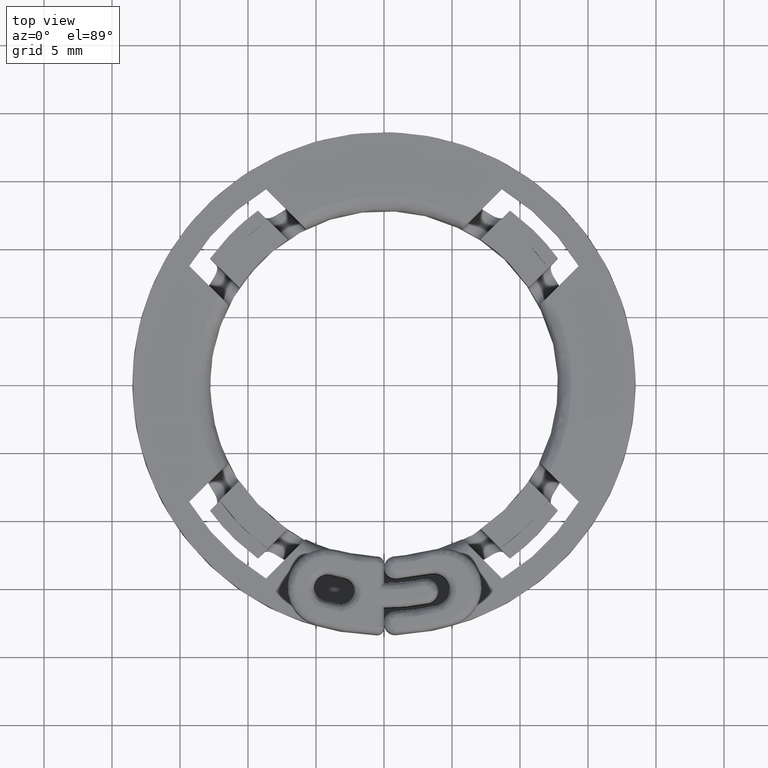
[diagram: clean part render]
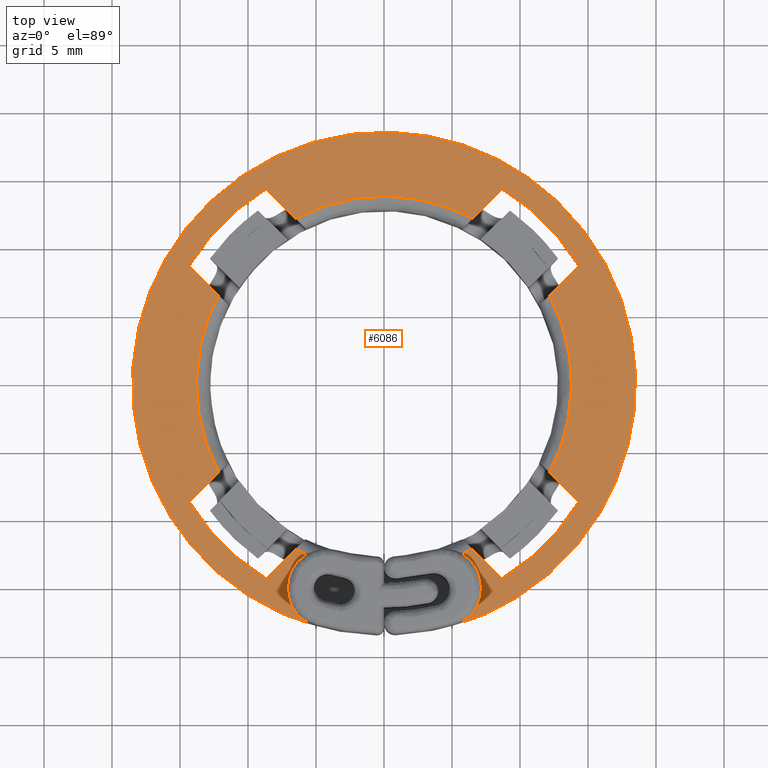
[diagram: same view with one face highlighted and labeled with its STEP entity id]
A machine part, top view. The second image highlights one B-rep face of the part: STEP entity #6086.
In plain terms, the highlighted face is a freeform B-spline surface patch.
Its self-contained STEP definition (entity closure, byte-faithful):
#253=CARTESIAN_POINT('',(-12.167591969634580,6.510737720142159,7.500000000000000));
#254=VERTEX_POINT('',#253);
#286=CARTESIAN_POINT('',(-12.167591969634620,-6.510737720142389,7.500000000000000));
#287=VERTEX_POINT('',#286);
#288=CARTESIAN_POINT('',(-12.167591969634630,-6.510737720142396,7.500000000000000));
#289=CARTESIAN_POINT('',(-15.651412413833512,-1.051451E-013,7.499999999999999));
#290=CARTESIAN_POINT('',(-12.167591969634580,6.510737720142164,7.500000000000000));
#298=(BOUNDED_CURVE()B_SPLINE_CURVE(2,(#288,#289,#290),.UNSPECIFIED.,.F.,.U.)CURVE()GEOMETRIC_REPRESENTATION_ITEM()QUASI_UNIFORM_CURVE()RATIONAL_B_SPLINE_CURVE((1.0,0.881709563017000,1.0))REPRESENTATION_ITEM(''));
#299=EDGE_CURVE('',#287,#254,#298,.T.);
#364=CARTESIAN_POINT('',(6.510737720142120,12.167591969634540,7.500000000000000));
#365=VERTEX_POINT('',#364);
#397=CARTESIAN_POINT('',(-6.510737720142219,12.167591969634479,7.500000000000000));
#398=VERTEX_POINT('',#397);
#399=CARTESIAN_POINT('',(-6.510737720142219,12.167591969634479,7.500000000000000));
#400=CARTESIAN_POINT('',(-6.331741E-014,15.651412413833278,7.500000000000000));
#401=CARTESIAN_POINT('',(6.510737720142117,12.167591969634540,7.500000000000000));
#409=(BOUNDED_CURVE()B_SPLINE_CURVE(2,(#399,#400,#401),.UNSPECIFIED.,.F.,.U.)CURVE()GEOMETRIC_REPRESENTATION_ITEM()QUASI_UNIFORM_CURVE()RATIONAL_B_SPLINE_CURVE((1.0,0.881709563017005,1.0))REPRESENTATION_ITEM(''));
#410=EDGE_CURVE('',#398,#365,#409,.T.);
#475=CARTESIAN_POINT('',(12.167591969634699,-6.510737720142250,7.500000000000000));
#476=VERTEX_POINT('',#475);
#508=CARTESIAN_POINT('',(12.167591969634520,6.510737720142269,7.500000000000000));
#509=VERTEX_POINT('',#508);
#510=CARTESIAN_POINT('',(12.167591969634520,6.510737720142271,7.500000000000000));
#511=CARTESIAN_POINT('',(15.651412413833498,5.531686E-014,7.500000000000000));
#512=CARTESIAN_POINT('',(12.167591969634710,-6.510737720142251,7.500000000000000));
#520=(BOUNDED_CURVE()B_SPLINE_CURVE(2,(#510,#511,#512),.UNSPECIFIED.,.F.,.U.)CURVE()GEOMETRIC_REPRESENTATION_ITEM()QUASI_UNIFORM_CURVE()RATIONAL_B_SPLINE_CURVE((1.0,0.881709563017001,1.0))REPRESENTATION_ITEM(''));
#521=EDGE_CURVE('',#509,#476,#520,.T.);
#586=CARTESIAN_POINT('',(-6.510737720142300,-12.167591969634740,7.500000000000000));
#587=VERTEX_POINT('',#586);
#619=CARTESIAN_POINT('',(-5.650019673288431,-12.590364478102201,7.500000000000000));
#620=VERTEX_POINT('',#619);
#621=CARTESIAN_POINT('',(-5.650019673288433,-12.590364478102201,7.500000000000000));
#622=CARTESIAN_POINT('',(-6.087727605509991,-12.393939789007019,7.500000000000000));
#623=CARTESIAN_POINT('',(-6.510737720142299,-12.167591969634749,7.500000000000000));
#631=(BOUNDED_CURVE()B_SPLINE_CURVE(2,(#621,#622,#623),.UNSPECIFIED.,.F.,.U.)CURVE()GEOMETRIC_REPRESENTATION_ITEM()QUASI_UNIFORM_CURVE()RATIONAL_B_SPLINE_CURVE((1.0,0.999396233828763,1.0))REPRESENTATION_ITEM(''));
#632=EDGE_CURVE('',#620,#587,#631,.T.);
#694=CARTESIAN_POINT('',(5.709376043485900,-12.563559415789500,7.500000000000000));
#695=VERTEX_POINT('',#694);
#723=CARTESIAN_POINT('',(6.510737720142440,-12.167591969634680,7.500000000000000));
#724=VERTEX_POINT('',#723);
#725=CARTESIAN_POINT('',(6.510737720142434,-12.167591969634680,7.500000000000000));
#726=CARTESIAN_POINT('',(6.116472133809665,-12.378558924402471,7.500000000000000));
#727=CARTESIAN_POINT('',(5.709376043485905,-12.563559415789509,7.500000000000000));
#735=(BOUNDED_CURVE()B_SPLINE_CURVE(2,(#725,#726,#727),.UNSPECIFIED.,.F.,.U.)CURVE()GEOMETRIC_REPRESENTATION_ITEM()QUASI_UNIFORM_CURVE()RATIONAL_B_SPLINE_CURVE((1.0,0.999475438218753,1.0))REPRESENTATION_ITEM(''));
#736=EDGE_CURVE('',#724,#695,#735,.T.);
#2581=CARTESIAN_POINT('',(14.329785740144461,8.672931490652299,7.500000000000000));
#2582=VERTEX_POINT('',#2581);
#2583=CARTESIAN_POINT('',(14.329785740144461,8.672931490652299,7.500000000000000));
#2584=CARTESIAN_POINT('',(12.167591969634520,6.510737720142269,7.500000000000000));
#2585=QUASI_UNIFORM_CURVE('',1,(#2583,#2584),.UNSPECIFIED.,.F.,.U.);
#2586=EDGE_CURVE('',#2582,#509,#2585,.T.);
#2616=CARTESIAN_POINT('',(8.672931490652161,14.329785740144599,7.500000000000000));
#2617=VERTEX_POINT('',#2616);
#2618=CARTESIAN_POINT('',(6.510737720142120,12.167591969634540,7.500000000000000));
#2619=CARTESIAN_POINT('',(8.672931490652161,14.329785740144599,7.500000000000000));
#2620=QUASI_UNIFORM_CURVE('',1,(#2618,#2619),.UNSPECIFIED.,.F.,.U.);
#2621=EDGE_CURVE('',#365,#2617,#2620,.T.);
#2680=CARTESIAN_POINT('',(14.329785740144461,8.672931490652299,7.500000000000000));
#2681=CARTESIAN_POINT('',(12.196928614345097,12.196928614345230,7.500000000000000));
#2682=CARTESIAN_POINT('',(8.672931490652161,14.329785740144599,7.500000000000000));
#2690=(BOUNDED_CURVE()B_SPLINE_CURVE(2,(#2680,#2681,#2682),.UNSPECIFIED.,.F.,.U.)CURVE()GEOMETRIC_REPRESENTATION_ITEM()QUASI_UNIFORM_CURVE()RATIONAL_B_SPLINE_CURVE((1.0,0.971067303857501,1.0))REPRESENTATION_ITEM(''));
#2691=EDGE_CURVE('',#2582,#2617,#2690,.T.);
#2760=CARTESIAN_POINT('',(8.672931490652310,-14.329785740144461,7.500000000000000));
#2761=VERTEX_POINT('',#2760);
#2762=CARTESIAN_POINT('',(8.672931490652310,-14.329785740144461,7.500000000000000));
#2763=CARTESIAN_POINT('',(6.510737720142440,-12.167591969634680,7.500000000000000));
#2764=QUASI_UNIFORM_CURVE('',1,(#2762,#2763),.UNSPECIFIED.,.F.,.U.);
#2765=EDGE_CURVE('',#2761,#724,#2764,.T.);
#2795=CARTESIAN_POINT('',(14.329785740144620,-8.672931490652150,7.500000000000000));
#2796=VERTEX_POINT('',#2795);
#2797=CARTESIAN_POINT('',(12.167591969634699,-6.510737720142250,7.500000000000000));
#2798=CARTESIAN_POINT('',(14.329785740144620,-8.672931490652150,7.500000000000000));
#2799=QUASI_UNIFORM_CURVE('',1,(#2797,#2798),.UNSPECIFIED.,.F.,.U.);
#2800=EDGE_CURVE('',#476,#2796,#2799,.T.);
#2859=CARTESIAN_POINT('',(8.672931490652292,-14.329785740144411,7.500000000000000));
#2860=CARTESIAN_POINT('',(12.196928614345248,-12.196928614345085,7.500000000000000));
#2861=CARTESIAN_POINT('',(14.329785740144620,-8.672931490652150,7.500000000000000));
#2869=(BOUNDED_CURVE()B_SPLINE_CURVE(2,(#2859,#2860,#2861),.UNSPECIFIED.,.F.,.U.)CURVE()GEOMETRIC_REPRESENTATION_ITEM()QUASI_UNIFORM_CURVE()RATIONAL_B_SPLINE_CURVE((1.0,0.971067303857501,1.0))REPRESENTATION_ITEM(''));
#2870=EDGE_CURVE('',#2761,#2796,#2869,.T.);
#2939=CARTESIAN_POINT('',(-14.329785740144439,-8.672931490652299,7.500000000000000));
#2940=VERTEX_POINT('',#2939);
#2941=CARTESIAN_POINT('',(-14.329785740144439,-8.672931490652299,7.500000000000000));
#2942=CARTESIAN_POINT('',(-12.167591969634620,-6.510737720142389,7.500000000000000));
#2943=QUASI_UNIFORM_CURVE('',1,(#2941,#2942),.UNSPECIFIED.,.F.,.U.);
#2944=EDGE_CURVE('',#2940,#287,#2943,.T.);
#2974=CARTESIAN_POINT('',(-8.672931490652131,-14.329785740144599,7.500000000000000));
#2975=VERTEX_POINT('',#2974);
#2976=CARTESIAN_POINT('',(-6.510737720142300,-12.167591969634740,7.500000000000000));
#2977=CARTESIAN_POINT('',(-8.672931490652131,-14.329785740144599,7.500000000000000));
#2978=QUASI_UNIFORM_CURVE('',1,(#2976,#2977),.UNSPECIFIED.,.F.,.U.);
#2979=EDGE_CURVE('',#587,#2975,#2978,.T.);
#3038=CARTESIAN_POINT('',(-14.329785740144400,-8.672931490652280,7.500000000000000));
#3039=CARTESIAN_POINT('',(-12.196928614345071,-12.196928614345225,7.500000000000001));
#3040=CARTESIAN_POINT('',(-8.672931490652131,-14.329785740144599,7.500000000000000));
#3048=(BOUNDED_CURVE()B_SPLINE_CURVE(2,(#3038,#3039,#3040),.UNSPECIFIED.,.F.,.U.)CURVE()GEOMETRIC_REPRESENTATION_ITEM()QUASI_UNIFORM_CURVE()RATIONAL_B_SPLINE_CURVE((1.0,0.971067303857501,1.0))REPRESENTATION_ITEM(''));
#3049=EDGE_CURVE('',#2940,#2975,#3048,.T.);
#3118=CARTESIAN_POINT('',(-8.672931490652282,14.329785740144461,7.500000000000000));
#3119=VERTEX_POINT('',#3118);
#3120=CARTESIAN_POINT('',(-8.672931490652282,14.329785740144461,7.500000000000000));
#3121=CARTESIAN_POINT('',(-6.510737720142219,12.167591969634479,7.500000000000000));
#3122=QUASI_UNIFORM_CURVE('',1,(#3120,#3121),.UNSPECIFIED.,.F.,.U.);
#3123=EDGE_CURVE('',#3119,#398,#3122,.T.);
#3153=CARTESIAN_POINT('',(-14.329785740144599,8.672931490652150,7.500000000000000));
#3154=VERTEX_POINT('',#3153);
#3155=CARTESIAN_POINT('',(-12.167591969634580,6.510737720142159,7.500000000000000));
#3156=CARTESIAN_POINT('',(-14.329785740144599,8.672931490652150,7.500000000000000));
#3157=QUASI_UNIFORM_CURVE('',1,(#3155,#3156),.UNSPECIFIED.,.F.,.U.);
#3158=EDGE_CURVE('',#254,#3154,#3157,.T.);
#3217=CARTESIAN_POINT('',(-8.672931490652282,14.329785740144461,7.500000000000000));
#3218=CARTESIAN_POINT('',(-12.196928614345214,12.196928614345090,7.500000000000000));
#3219=CARTESIAN_POINT('',(-14.329785740144599,8.672931490652150,7.500000000000000));
#3227=(BOUNDED_CURVE()B_SPLINE_CURVE(2,(#3217,#3218,#3219),.UNSPECIFIED.,.F.,.U.)CURVE()GEOMETRIC_REPRESENTATION_ITEM()QUASI_UNIFORM_CURVE()RATIONAL_B_SPLINE_CURVE((1.0,0.971067303857501,1.0))REPRESENTATION_ITEM(''));
#3228=EDGE_CURVE('',#3119,#3154,#3227,.T.);
#5226=CARTESIAN_POINT('',(-5.008759995866591,-17.809051723879250,7.500000000000000));
#5227=VERTEX_POINT('',#5226);
#5240=CARTESIAN_POINT('',(-5.650019673288426,-12.590364478102209,7.500000000000000));
#5241=CARTESIAN_POINT('',(-7.297178212601193,-13.530612415468672,7.500000000000000));
#5242=CARTESIAN_POINT('',(-7.065864903947649,-15.413081961196481,7.500000000000000));
#5243=CARTESIAN_POINT('',(-6.834551595294103,-17.295551506924280,7.500000000000000));
#5244=CARTESIAN_POINT('',(-5.008759995866591,-17.809051723879250,7.500000000000000));
#5252=(BOUNDED_CURVE()B_SPLINE_CURVE(2,(#5240,#5241,#5242,#5243,#5244),.UNSPECIFIED.,.F.,.U.)B_SPLINE_CURVE_WITH_KNOTS((3,2,3),(0.0,0.500000000000000,1.0),.UNSPECIFIED.)CURVE()GEOMETRIC_REPRESENTATION_ITEM()RATIONAL_B_SPLINE_CURVE((1.0,0.832504634925886,1.0,0.832504634925886,1.0))REPRESENTATION_ITEM(''));
#5253=EDGE_CURVE('',#620,#5227,#5252,.T.);
#5830=CARTESIAN_POINT('',(5.092752715123740,-17.785214920900049,7.500000000000000));
#5831=VERTEX_POINT('',#5830);
#5837=CARTESIAN_POINT('',(5.092752715123740,-17.785214920900049,7.500000000000000));
#5838=CARTESIAN_POINT('',(6.916100555314078,-17.263103734442893,7.500000000000000));
#5839=CARTESIAN_POINT('',(7.138527112446024,-15.379563486921510,7.500000000000000));
#5840=CARTESIAN_POINT('',(7.360953669577971,-13.496023239400134,7.500000000000000));
#5841=CARTESIAN_POINT('',(5.709376043485898,-12.563559415789509,7.500000000000000));
#5849=(BOUNDED_CURVE()B_SPLINE_CURVE(2,(#5837,#5838,#5839,#5840,#5841),.UNSPECIFIED.,.F.,.U.)B_SPLINE_CURVE_WITH_KNOTS((3,2,3),(0.0,0.500000000000000,1.0),.UNSPECIFIED.)CURVE()GEOMETRIC_REPRESENTATION_ITEM()RATIONAL_B_SPLINE_CURVE((1.0,0.832504634925972,1.0,0.832504634925972,1.0))REPRESENTATION_ITEM(''));
#5850=EDGE_CURVE('',#5831,#695,#5849,.T.);
#5889=CARTESIAN_POINT('',(-5.008759995866581,-17.809051723879250,7.500000000000000));
#5890=CARTESIAN_POINT('',(-20.511264039738634,-13.449003626169960,7.499999999999999));
#5891=CARTESIAN_POINT('',(-18.329418922570081,2.506472014790913,7.500000000000000));
#5892=CARTESIAN_POINT('',(-16.147573805401521,18.461947655751786,7.499999999999999));
#5893=CARTESIAN_POINT('',(-0.043654810916110,18.499948493373811,7.500000000000000));
#5894=CARTESIAN_POINT('',(16.060264183569306,18.537949330995847,7.499999999999999));
#5895=CARTESIAN_POINT('',(18.317385687147201,2.592948435332815,7.500000000000000));
#5896=CARTESIAN_POINT('',(20.574507190725079,-13.352052460330180,7.499999999999999));
#5897=CARTESIAN_POINT('',(5.092752715123740,-17.785214920900049,7.500000000000000));
#5905=(BOUNDED_CURVE()B_SPLINE_CURVE(2,(#5889,#5890,#5891,#5892,#5893,#5894,#5895,#5896,#5897),.UNSPECIFIED.,.F.,.U.)B_SPLINE_CURVE_WITH_KNOTS((3,2,2,2,3),(0.0,0.250000000000000,0.500000000000000,0.750000000000000,1.0),.UNSPECIFIED.)CURVE()GEOMETRIC_REPRESENTATION_ITEM()RATIONAL_B_SPLINE_CURVE((1.0,0.754262075821539,1.0,0.754262075821539,1.0,0.754262075821539,1.0,0.754262075821539,1.0))REPRESENTATION_ITEM(''));
#5906=EDGE_CURVE('',#5227,#5831,#5905,.T.);
#6059=CARTESIAN_POINT('',(20.348081208362760,-19.622686214357149,7.500000000000000));
#6060=CARTESIAN_POINT('',(-20.348128753554668,-19.622686214357149,7.500000000000000));
#6061=CARTESIAN_POINT('',(20.348081208362760,20.313583957734991,7.500000000000000));
#6062=CARTESIAN_POINT('',(-20.348128753554668,20.313583957734991,7.500000000000000));
#6063=B_SPLINE_SURFACE_WITH_KNOTS('',1,1,((#6059,#6061),(#6060,#6062)),.UNSPECIFIED.,.F.,.F.,.U.,(2,2),(2,2),(0.0,40.696209961917432),(0.0,39.936270172092136),.UNSPECIFIED.);
#6064=ORIENTED_EDGE('',*,*,#2765,.T.);
#6065=ORIENTED_EDGE('',*,*,#736,.T.);
#6066=ORIENTED_EDGE('',*,*,#5850,.F.);
#6067=ORIENTED_EDGE('',*,*,#5906,.F.);
#6068=ORIENTED_EDGE('',*,*,#5253,.F.);
#6069=ORIENTED_EDGE('',*,*,#632,.T.);
#6070=ORIENTED_EDGE('',*,*,#2979,.T.);
#6071=ORIENTED_EDGE('',*,*,#3049,.F.);
#6072=ORIENTED_EDGE('',*,*,#2944,.T.);
#6073=ORIENTED_EDGE('',*,*,#299,.T.);
#6074=ORIENTED_EDGE('',*,*,#3158,.T.);
#6075=ORIENTED_EDGE('',*,*,#3228,.F.);
#6076=ORIENTED_EDGE('',*,*,#3123,.T.);
#6077=ORIENTED_EDGE('',*,*,#410,.T.);
#6078=ORIENTED_EDGE('',*,*,#2621,.T.);
#6079=ORIENTED_EDGE('',*,*,#2691,.F.);
#6080=ORIENTED_EDGE('',*,*,#2586,.T.);
#6081=ORIENTED_EDGE('',*,*,#521,.T.);
#6082=ORIENTED_EDGE('',*,*,#2800,.T.);
#6083=ORIENTED_EDGE('',*,*,#2870,.F.);
#6084=EDGE_LOOP('',(#6064,#6065,#6066,#6067,#6068,#6069,#6070,#6071,#6072,#6073,#6074,#6075,#6076,#6077,#6078,#6079,#6080,#6081,#6082,#6083));
#6085=FACE_OUTER_BOUND('',#6084,.T.);
#6086=ADVANCED_FACE('',(#6085),#6063,.F.);